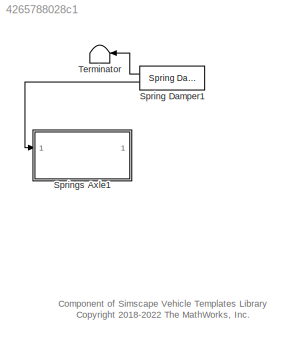
MODEL slx_4265788028c1
KIND library
CONFIG AbsTol = auto
CONFIG EnableMultiTasking = off
CONFIG FixedStep = auto
CONFIG MaxStep = auto
CONFIG MinStep = auto
CONFIG RelTol = 1e-3
CONFIG SampleTimeConstraint = Unconstrained
CONFIG SolverName = VariableStepAuto
CONFIG StartTime = 0.0
CONFIG StopTime = 10.0
BLOCK [Reference] Spring Damper1  REF=sm_car_lib/Inputs/Control Bus/Spring Damper  (lib defined in slx_05426f0848b6, slx_5dc2867fb1c9)
  Ports = [0, 2]
  SourceBlock = sm_car_lib/Inputs/Control Bus/Spring Damper
  SourceType = SubSystem
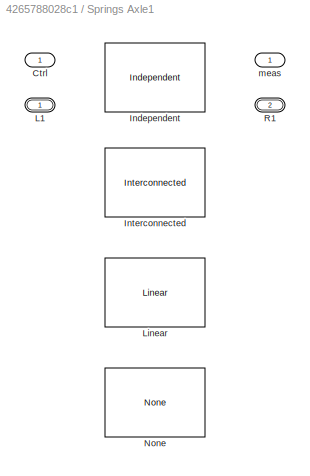
BLOCK [SubSystem] Springs Axle1
  AttributesFormatString = %<ActiveVariant>
  LabelModeActiveChoice = Independent
  Ports = [1, 1, 0, 0, 0, 1, 1]
  RequestExecContextInheritance = off
  Variant = on
  VariantControl = Variant1
  VariantControlMode = label
BLOCK [PMIOPort] Springs Axle1/ L1
  Side = Left
BLOCK [Outport] Springs Axle1/ meas
  VectorParamsAs1DForOutWhenUnconnected = off
BLOCK [Inport] Springs Axle1/Ctrl 
BLOCK [Reference] Springs Axle1/Independent  REF=Springs_Axle1_Independent/Independent
  Ports = [1, 1, 0, 0, 0, 1, 1]
  SourceBlock = Springs_Axle1_Independent/Independent
  SourceType = Independent Springs
BLOCK [Reference] Springs Axle1/Interconnected  REF=Springs_Axle1_Interconnected/Interconnected
  Ports = [1, 1, 0, 0, 0, 1, 1]
  SourceBlock = Springs_Axle1_Interconnected/Interconnected
  SourceType = Interconnected Springs
BLOCK [Reference] Springs Axle1/Linear  REF=Springs_Axle1_Linear/Linear
  Ports = [1, 1, 0, 0, 0, 1, 1]
  SourceBlock = Springs_Axle1_Linear/Linear
  SourceType = SubSystem
BLOCK [Reference] Springs Axle1/None  REF=Springs_Axle1_None/None
  Ports = [1, 1, 0, 0, 0, 1, 1]
  SourceBlock = Springs_Axle1_None/None
  SourceType = Spring System Placeholder
BLOCK [PMIOPort] Springs Axle1/R1
  Port = 2
  Side = Right
BLOCK [Terminator] Terminator
  NameLocation = top
ANNOTATION (root): Component of Simscape Vehicle Templates Library <copyright redacted>
LINE Spring Damper1:1 -> Terminator:1
LINE Spring Damper1:2 -> Springs Axle1:1
